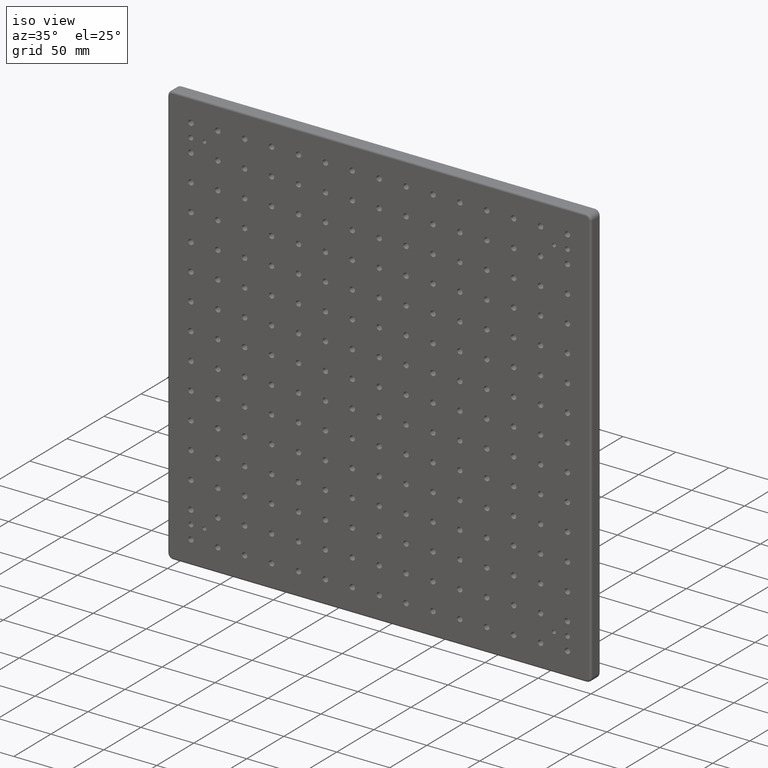
[diagram: clean part render]
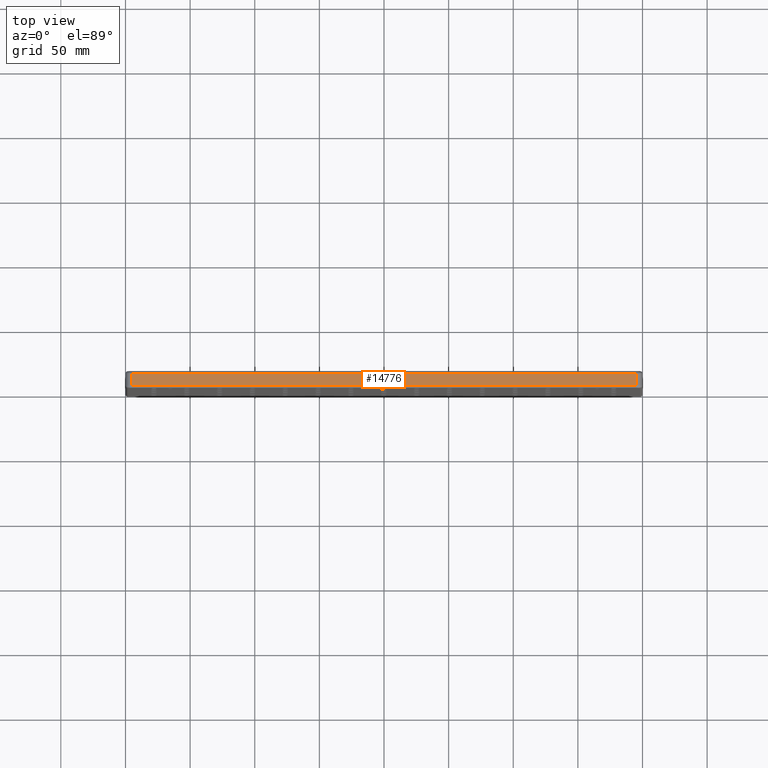
[diagram: tour spotlight — one face highlighted and labeled with its STEP entity id]
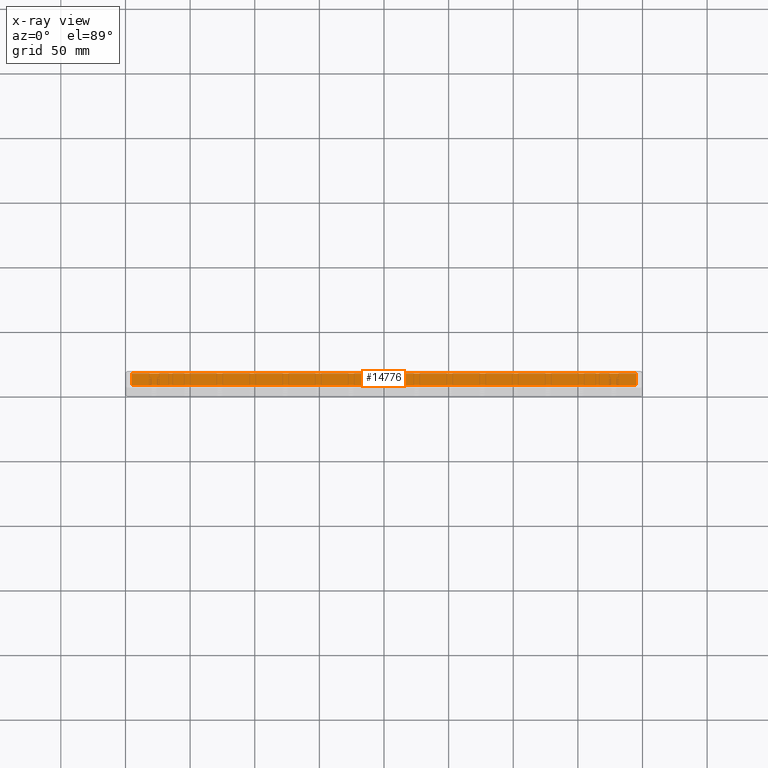
[diagram: x-ray of the same camera — body ghosted, this tour face saturated]
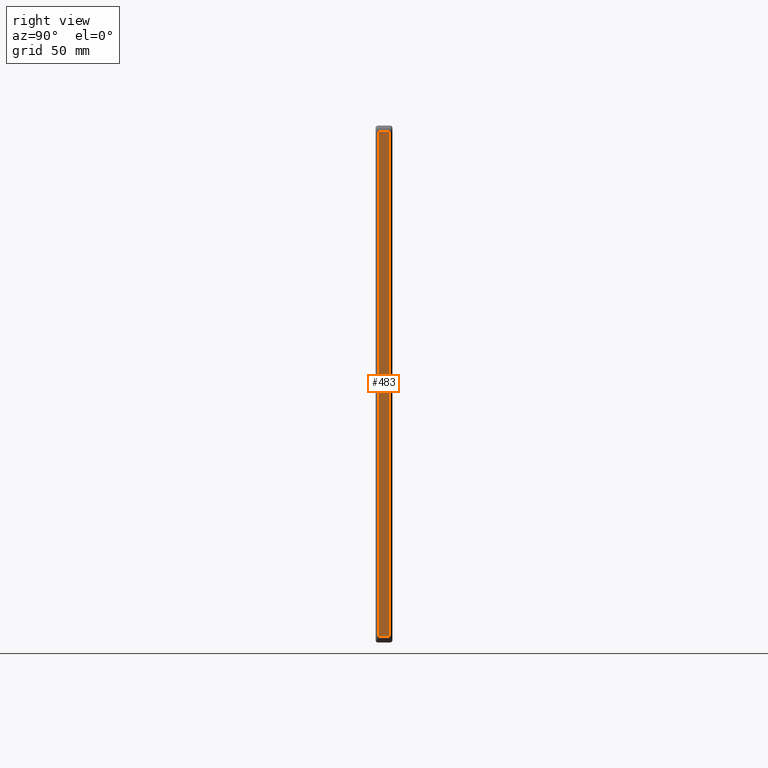
[diagram: tour spotlight — one face highlighted and labeled with its STEP entity id]
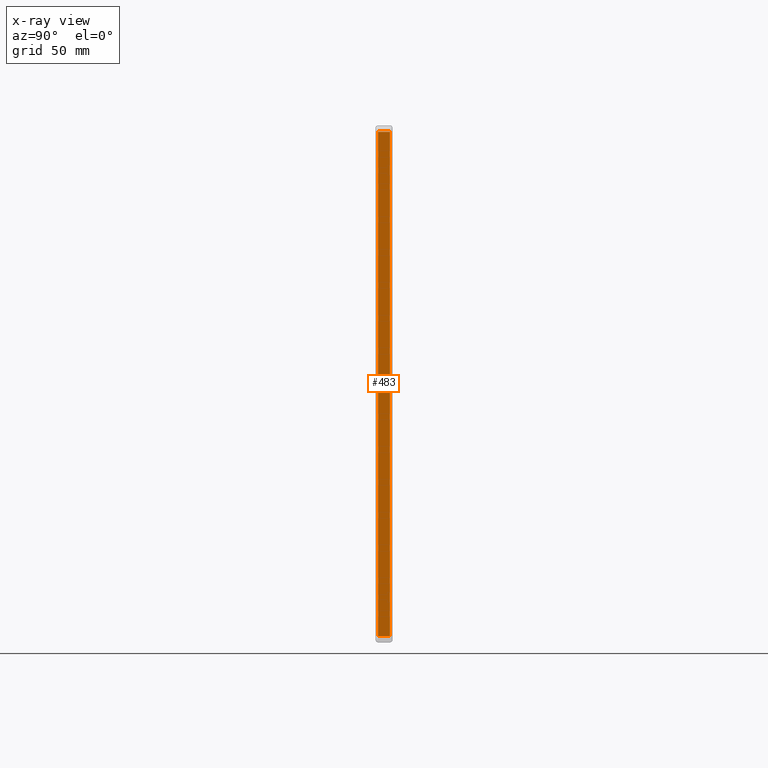
[diagram: x-ray of the same camera — body ghosted, this tour face saturated]
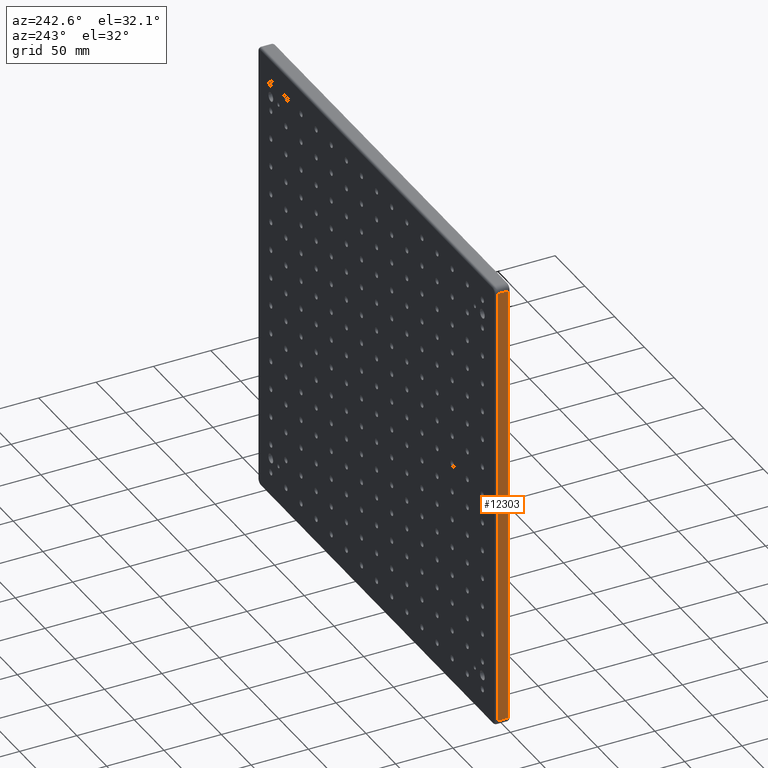
[diagram: tour spotlight — one face highlighted and labeled with its STEP entity id]
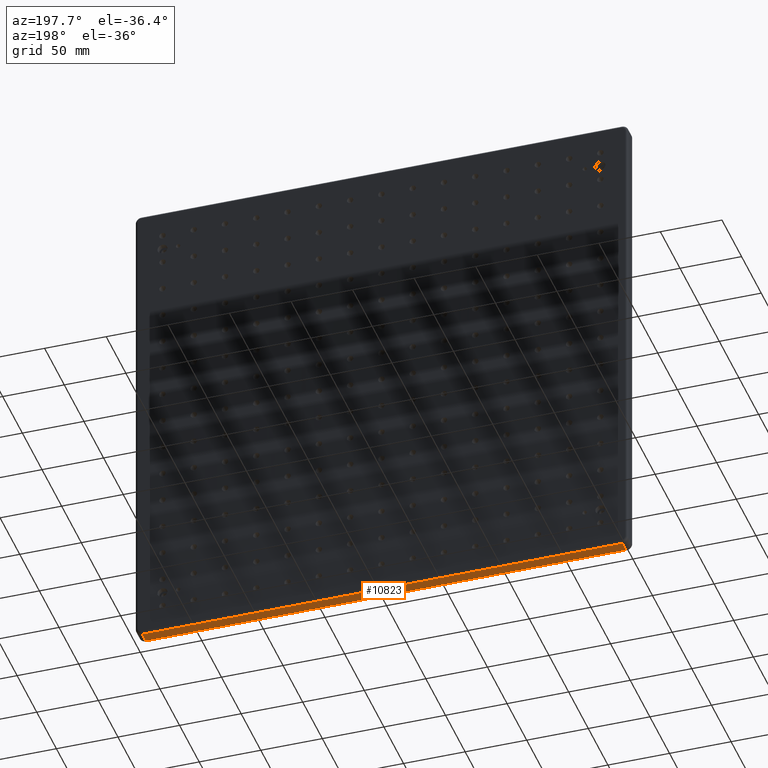
[diagram: tour spotlight — one face highlighted and labeled with its STEP entity id]
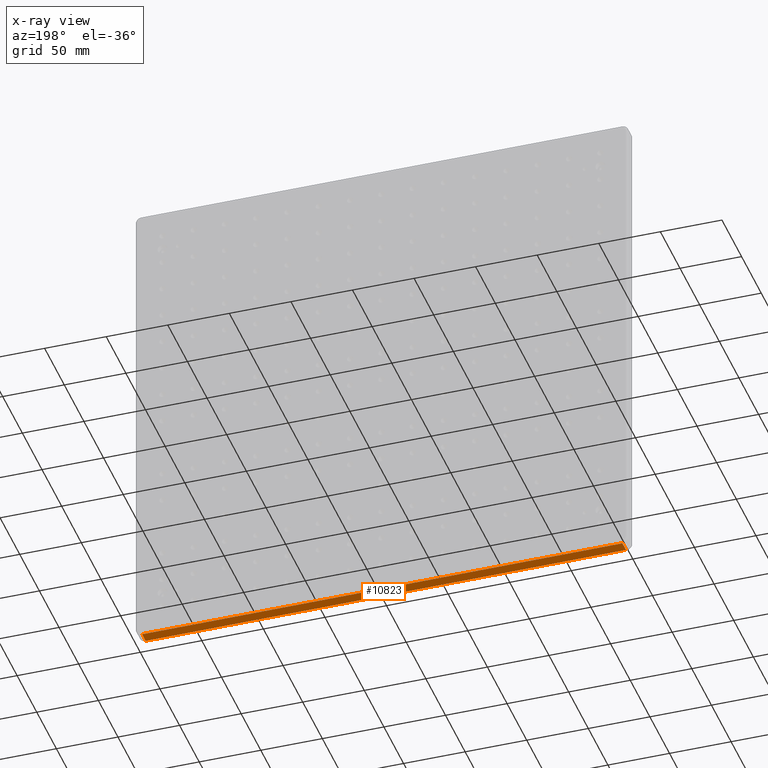
[diagram: x-ray of the same camera — body ghosted, this tour face saturated]
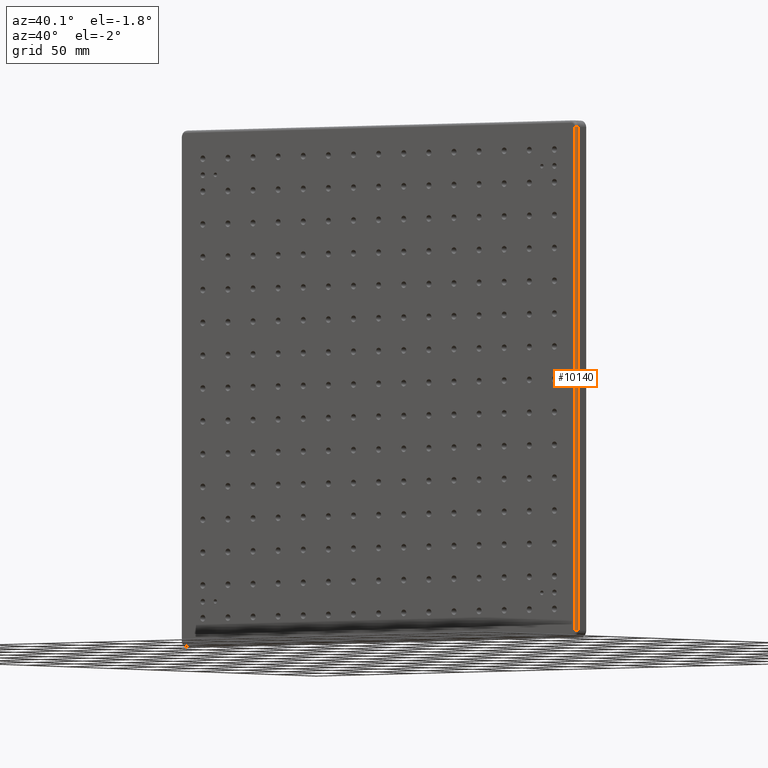
[diagram: tour spotlight — one face highlighted and labeled with its STEP entity id]
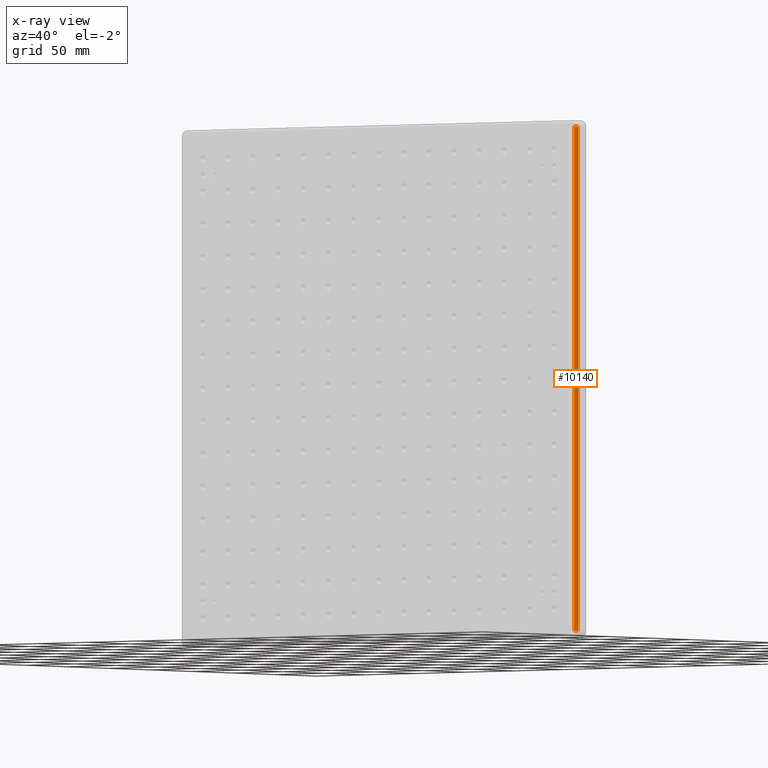
[diagram: x-ray of the same camera — body ghosted, this tour face saturated]
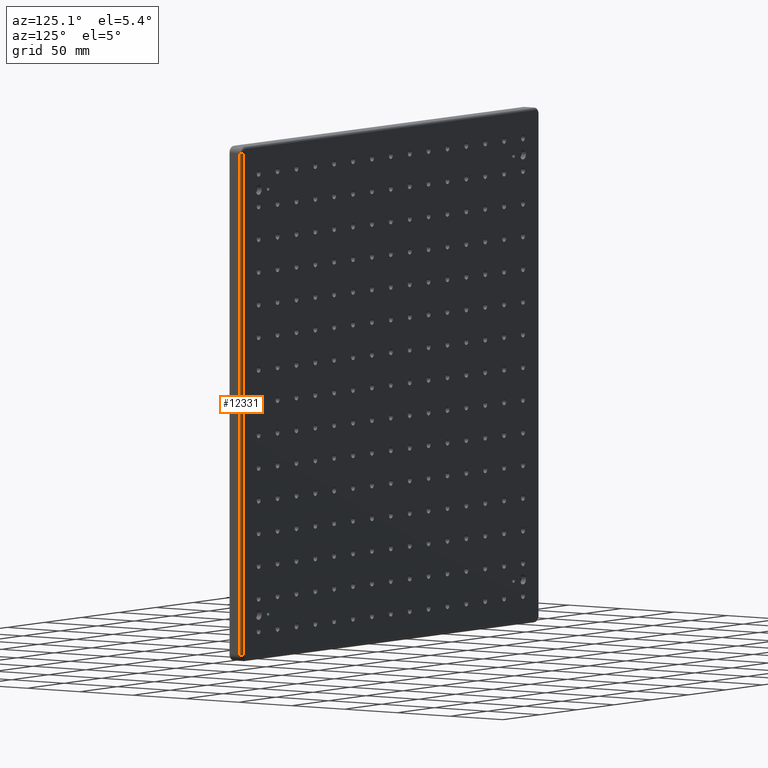
[diagram: tour spotlight — one face highlighted and labeled with its STEP entity id]
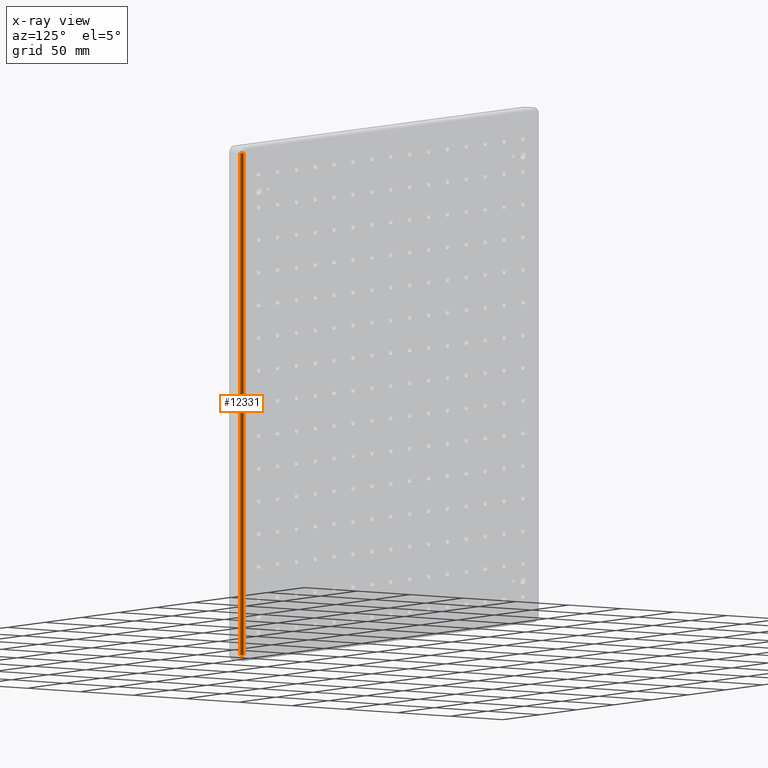
[diagram: x-ray of the same camera — body ghosted, this tour face saturated]
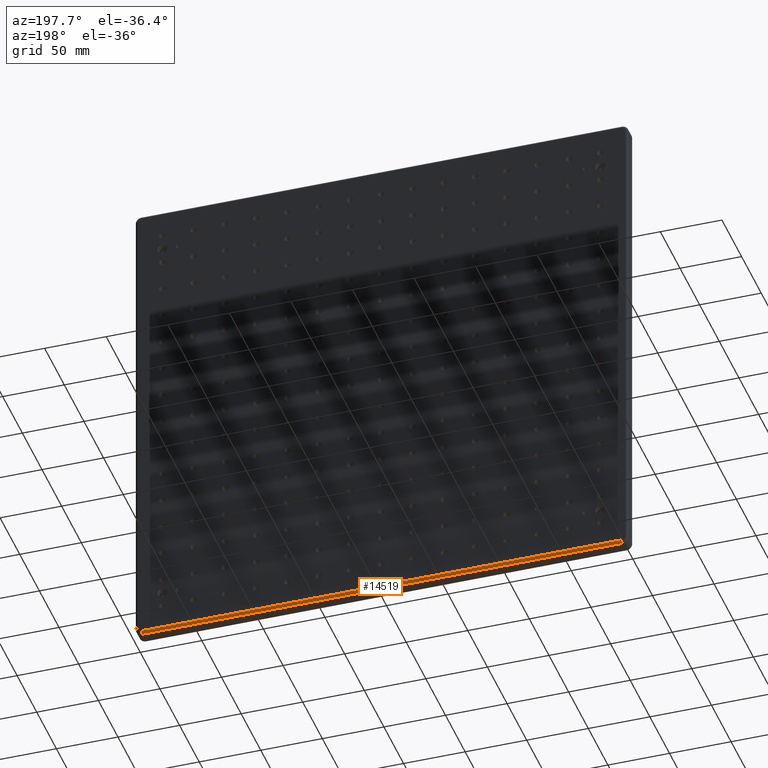
[diagram: tour spotlight — one face highlighted and labeled with its STEP entity id]
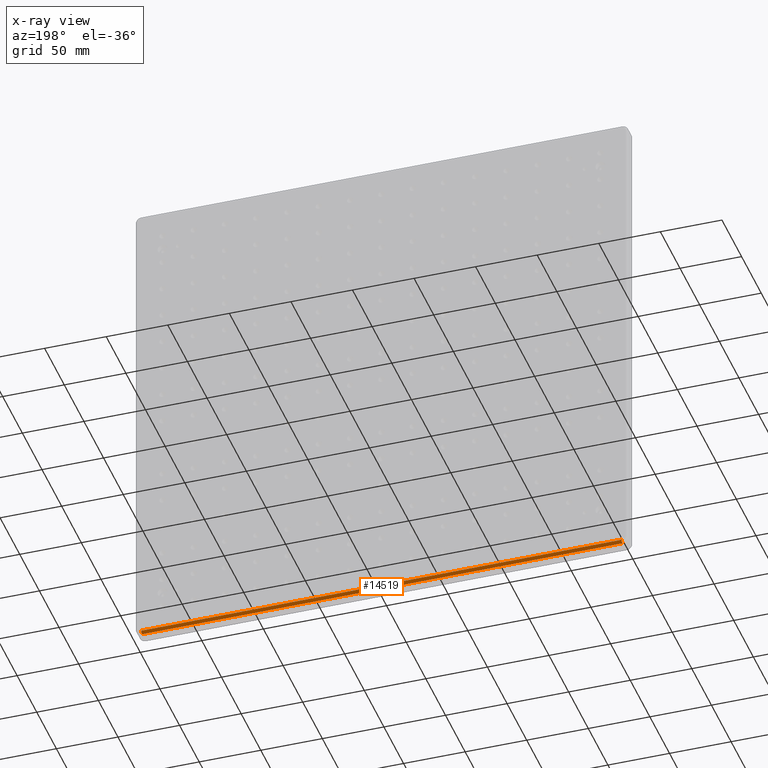
[diagram: x-ray of the same camera — body ghosted, this tour face saturated]
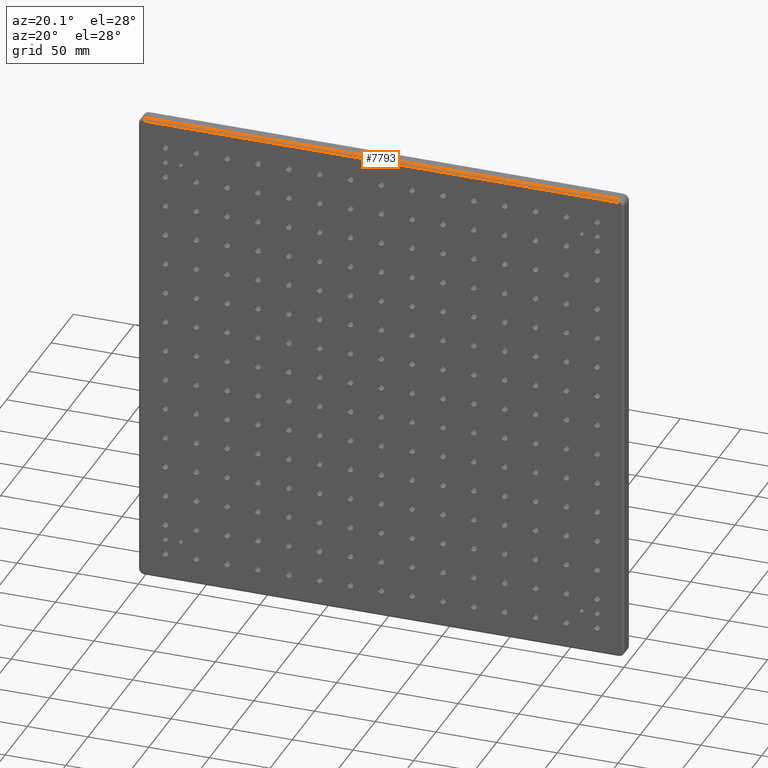
[diagram: tour spotlight — one face highlighted and labeled with its STEP entity id]
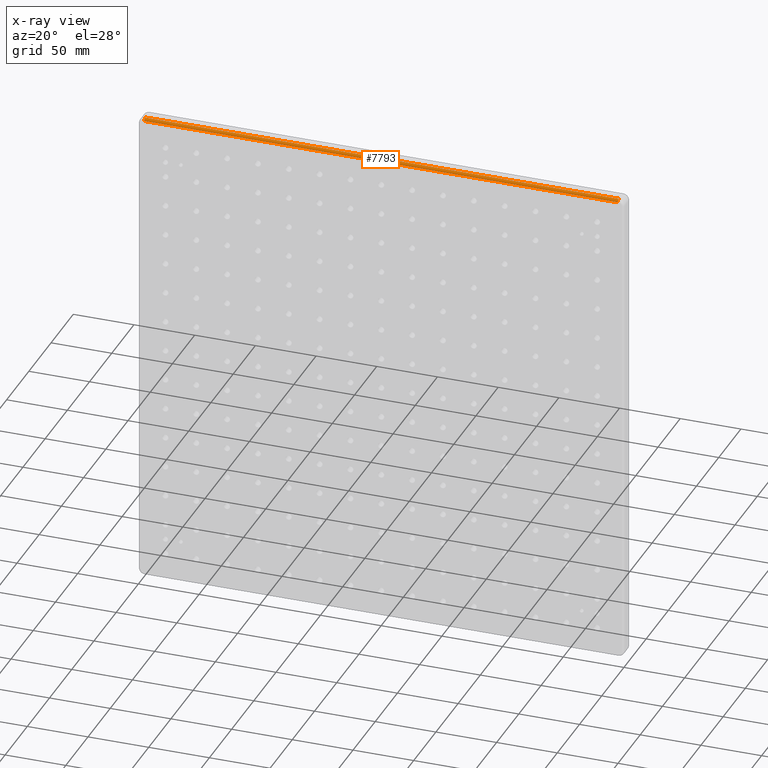
[diagram: x-ray of the same camera — body ghosted, this tour face saturated]
A machine part: a face-by-face anatomy tour. The part has 504 B-rep faces; the first image is the clean iso view, then the 8 largest visible faces are spotlighted one at a time (largest first), each with its STEP entity span.

Face 1 — top view, entity #14776. An x-ray twin of the same camera follows (body ghosted, this face saturated) — the face is partly hidden behind the body. In plain terms, the highlighted planar face has unit normal (-0, 0, -1).
Definition (entity closure, byte-faithful):
#77 = EDGE_CURVE ( 'NONE', #2467, #13270, #11244, .T. ) ;
#265 = CARTESIAN_POINT ( 'NONE',  ( 195.0000000000000000, 11.00000000000000000, 199.9999999999999400 ) ) ;
#1055 = CARTESIAN_POINT ( 'NONE',  ( 195.0000000000000000, 2.000000000000003600, 199.9999999999999400 ) ) ;
#1332 = LINE ( 'NONE', #3213, #5340 ) ;
#1809 = ORIENTED_EDGE ( 'NONE', *, *, #2120, .F. ) ;
#2120 = EDGE_CURVE ( 'NONE', #15778, #13270, #3586, .T. ) ;
#2467 = VERTEX_POINT ( 'NONE', #15358 ) ;
#2491 = EDGE_LOOP ( 'NONE', ( #16351, #6116, #1809, #17312 ) ) ;
#2707 = CARTESIAN_POINT ( 'NONE',  ( -194.9999999999999400, 2.000000000000000000, 200.0000000000000000 ) ) ;
#2862 = CARTESIAN_POINT ( 'NONE',  ( -194.9999999999999400, 13.00000000000000000, 200.0000000000000000 ) ) ;
#2873 = CARTESIAN_POINT ( 'NONE',  ( 195.0000000000000000, 13.00000000000000000, 199.9999999999999400 ) ) ;
#3213 = CARTESIAN_POINT ( 'NONE',  ( -194.9999999999999400, 13.00000000000000000, 200.0000000000000000 ) ) ;
#3325 = DIRECTION ( 'NONE',  ( -0.0000000000000000000, -1.000000000000000000, -0.0000000000000000000 ) ) ;
#3586 = LINE ( 'NONE', #2873, #5831 ) ;
#3712 = VECTOR ( 'NONE', #12349, 1000.000000000000000 ) ;
#4593 = DIRECTION ( 'NONE',  ( -1.000000000000000000, 0.0000000000000000000, 1.423362852083534100E-016 ) ) ;
#5030 = DIRECTION ( 'NONE',  ( -0.0000000000000000000, -1.000000000000000000, -0.0000000000000000000 ) ) ;
#5076 = VERTEX_POINT ( 'NONE', #8749 ) ;
#5340 = VECTOR ( 'NONE', #3325, 1000.000000000000000 ) ;
#5831 = VECTOR ( 'NONE', #5030, 1000.000000000000000 ) ;
#6116 = ORIENTED_EDGE ( 'NONE', *, *, #77, .T. ) ;
#8469 = EDGE_CURVE ( 'NONE', #5076, #2467, #1332, .T. ) ;
#8749 = CARTESIAN_POINT ( 'NONE',  ( -194.9999999999999400, 11.00000000000000000, 200.0000000000000000 ) ) ;
#9576 = DIRECTION ( 'NONE',  ( -1.000000000000000000, -0.0000000000000000000, 1.423362852083534100E-016 ) ) ;
#9723 = LINE ( 'NONE', #11112, #15205 ) ;
#9812 = AXIS2_PLACEMENT_3D ( 'NONE', #2862, #14488, #4593 ) ;
#9966 = EDGE_CURVE ( 'NONE', #15778, #5076, #9723, .T. ) ;
#11112 = CARTESIAN_POINT ( 'NONE',  ( -194.9999999999999400, 11.00000000000000000, 200.0000000000000000 ) ) ;
#11244 = LINE ( 'NONE', #2707, #3712 ) ;
#11346 = PLANE ( 'NONE',  #9812 ) ;
#12217 = FACE_OUTER_BOUND ( 'NONE', #2491, .T. ) ;
#12349 = DIRECTION ( 'NONE',  ( 1.000000000000000000, 0.0000000000000000000, -1.423362852083534100E-016 ) ) ;
#13270 = VERTEX_POINT ( 'NONE', #1055 ) ;
#14488 = DIRECTION ( 'NONE',  ( -1.423362852083534100E-016, 0.0000000000000000000, -1.000000000000000000 ) ) ;
#14776 = ADVANCED_FACE ( 'NONE', ( #12217 ), #11346, .F. ) ;
#15205 = VECTOR ( 'NONE', #9576, 1000.000000000000000 ) ;
#15358 = CARTESIAN_POINT ( 'NONE',  ( -194.9999999999999400, 2.000000000000003600, 200.0000000000000000 ) ) ;
#15778 = VERTEX_POINT ( 'NONE', #265 ) ;
#16351 = ORIENTED_EDGE ( 'NONE', *, *, #8469, .T. ) ;
#17312 = ORIENTED_EDGE ( 'NONE', *, *, #9966, .T. ) ;

Face 2 — right view, entity #483. An x-ray twin of the same camera follows (body ghosted, this face saturated) — the face is partly hidden behind the body. In plain terms, the highlighted planar face has unit normal (-1, 0, 0).
Definition (entity closure, byte-faithful):
#483 = ADVANCED_FACE ( 'NONE', ( #4829 ), #13500, .F. ) ;
#752 = EDGE_CURVE ( 'NONE', #9300, #10222, #5045, .T. ) ;
#1277 = DIRECTION ( 'NONE',  ( -0.0000000000000000000, -1.000000000000000000, -0.0000000000000000000 ) ) ;
#1515 = EDGE_CURVE ( 'NONE', #9300, #10618, #1880, .T. ) ;
#1880 = LINE ( 'NONE', #18321, #6997 ) ;
#2383 = EDGE_CURVE ( 'NONE', #10222, #5812, #13255, .T. ) ;
#3319 = VECTOR ( 'NONE', #1277, 1000.000000000000000 ) ;
#3486 = CARTESIAN_POINT ( 'NONE',  ( 200.0000000000000300, 11.00000000000000000, 194.9999999999999100 ) ) ;
#4829 = FACE_OUTER_BOUND ( 'NONE', #5179, .T. ) ;
#4919 = ORIENTED_EDGE ( 'NONE', *, *, #2383, .T. ) ;
#5005 = DIRECTION ( 'NONE',  ( -1.000000000000000000, 0.0000000000000000000, 7.116814260417670700E-017 ) ) ;
#5045 = LINE ( 'NONE', #9942, #8594 ) ;
#5179 = EDGE_LOOP ( 'NONE', ( #4919, #14579, #9483, #13265 ) ) ;
#5745 = DIRECTION ( 'NONE',  ( 7.116814260417670700E-017, -0.0000000000000000000, 1.000000000000000000 ) ) ;
#5806 = EDGE_CURVE ( 'NONE', #5812, #10618, #14253, .T. ) ;
#5812 = VERTEX_POINT ( 'NONE', #8737 ) ;
#6997 = VECTOR ( 'NONE', #8447, 1000.000000000000000 ) ;
#7267 = CARTESIAN_POINT ( 'NONE',  ( 200.0000000000000000, 2.000000000000000000, -195.0000000000000300 ) ) ;
#7513 = AXIS2_PLACEMENT_3D ( 'NONE', #13267, #5005, #14851 ) ;
#8003 = CARTESIAN_POINT ( 'NONE',  ( 200.0000000000000000, 2.000000000000003600, -195.0000000000000300 ) ) ;
#8447 = DIRECTION ( 'NONE',  ( -0.0000000000000000000, -1.000000000000000000, -0.0000000000000000000 ) ) ;
#8594 = VECTOR ( 'NONE', #5745, 1000.000000000000000 ) ;
#8737 = CARTESIAN_POINT ( 'NONE',  ( 200.0000000000000300, 2.000000000000001800, 194.9999999999999100 ) ) ;
#9300 = VERTEX_POINT ( 'NONE', #15048 ) ;
#9483 = ORIENTED_EDGE ( 'NONE', *, *, #1515, .F. ) ;
#9774 = CARTESIAN_POINT ( 'NONE',  ( 200.0000000000000300, 13.00000000000000000, 194.9999999999999100 ) ) ;
#9942 = CARTESIAN_POINT ( 'NONE',  ( 200.0000000000000300, 11.00000000000000000, 194.9999999999999100 ) ) ;
#10222 = VERTEX_POINT ( 'NONE', #3486 ) ;
#10618 = VERTEX_POINT ( 'NONE', #8003 ) ;
#13255 = LINE ( 'NONE', #9774, #3319 ) ;
#13265 = ORIENTED_EDGE ( 'NONE', *, *, #752, .T. ) ;
#13267 = CARTESIAN_POINT ( 'NONE',  ( 200.0000000000000000, 13.00000000000000000, -195.0000000000000300 ) ) ;
#13500 = PLANE ( 'NONE',  #7513 ) ;
#14253 = LINE ( 'NONE', #7267, #16004 ) ;
#14465 = DIRECTION ( 'NONE',  ( -7.116814260417670700E-017, 0.0000000000000000000, -1.000000000000000000 ) ) ;
#14579 = ORIENTED_EDGE ( 'NONE', *, *, #5806, .T. ) ;
#14851 = DIRECTION ( 'NONE',  ( 7.116814260417670700E-017, 0.0000000000000000000, 1.000000000000000000 ) ) ;
#15048 = CARTESIAN_POINT ( 'NONE',  ( 200.0000000000000000, 11.00000000000000000, -195.0000000000000300 ) ) ;
#16004 = VECTOR ( 'NONE', #14465, 1000.000000000000000 ) ;
#18321 = CARTESIAN_POINT ( 'NONE',  ( 200.0000000000000000, 13.00000000000000000, -195.0000000000000300 ) ) ;

Face 3 — auxiliary view, entity #12303. In plain terms, the highlighted planar face has unit normal (1, 0, -0).
Definition (entity closure, byte-faithful):
#18 = EDGE_CURVE ( 'NONE', #5198, #151, #2155, .T. ) ;
#151 = VERTEX_POINT ( 'NONE', #1080 ) ;
#291 = VECTOR ( 'NONE', #16952, 1000.000000000000000 ) ;
#1080 = CARTESIAN_POINT ( 'NONE',  ( -200.0000000000000000, 11.00000000000000000, -194.9999999999999700 ) ) ;
#1885 = VECTOR ( 'NONE', #11181, 1000.000000000000000 ) ;
#2016 = ORIENTED_EDGE ( 'NONE', *, *, #18, .T. ) ;
#2155 = LINE ( 'NONE', #9286, #6841 ) ;
#2167 = ORIENTED_EDGE ( 'NONE', *, *, #13129, .T. ) ;
#2872 = EDGE_LOOP ( 'NONE', ( #2167, #6864, #13669, #2016 ) ) ;
#3460 = LINE ( 'NONE', #7136, #5910 ) ;
#4738 = DIRECTION ( 'NONE',  ( -7.116814260417670700E-017, 0.0000000000000000000, -1.000000000000000000 ) ) ;
#5198 = VERTEX_POINT ( 'NONE', #7278 ) ;
#5703 = DIRECTION ( 'NONE',  ( -0.0000000000000000000, -1.000000000000000000, -0.0000000000000000000 ) ) ;
#5910 = VECTOR ( 'NONE', #5703, 1000.000000000000000 ) ;
#6051 = PLANE ( 'NONE',  #15539 ) ;
#6174 = CARTESIAN_POINT ( 'NONE',  ( -200.0000000000000000, 13.00000000000000000, -194.9999999999999700 ) ) ;
#6841 = VECTOR ( 'NONE', #13526, 1000.000000000000000 ) ;
#6864 = ORIENTED_EDGE ( 'NONE', *, *, #14140, .T. ) ;
#6885 = CARTESIAN_POINT ( 'NONE',  ( -200.0000000000000000, 2.000000000000000000, -194.9999999999999700 ) ) ;
#7136 = CARTESIAN_POINT ( 'NONE',  ( -199.9999999999999700, 13.00000000000000000, 194.9999999999999700 ) ) ;
#7278 = CARTESIAN_POINT ( 'NONE',  ( -199.9999999999999700, 11.00000000000000000, 194.9999999999999700 ) ) ;
#7518 = VERTEX_POINT ( 'NONE', #8041 ) ;
#8041 = CARTESIAN_POINT ( 'NONE',  ( -199.9999999999999700, 2.000000000000003600, 194.9999999999999700 ) ) ;
#8873 = DIRECTION ( 'NONE',  ( 1.000000000000000000, 0.0000000000000000000, -7.116814260417670700E-017 ) ) ;
#9286 = CARTESIAN_POINT ( 'NONE',  ( -200.0000000000000000, 11.00000000000000000, -194.9999999999999700 ) ) ;
#11181 = DIRECTION ( 'NONE',  ( -0.0000000000000000000, -1.000000000000000000, -0.0000000000000000000 ) ) ;
#11330 = VERTEX_POINT ( 'NONE', #12508 ) ;
#12303 = ADVANCED_FACE ( 'NONE', ( #13195 ), #6051, .F. ) ;
#12508 = CARTESIAN_POINT ( 'NONE',  ( -200.0000000000000000, 2.000000000000001800, -194.9999999999999700 ) ) ;
#12582 = CARTESIAN_POINT ( 'NONE',  ( -200.0000000000000000, 13.00000000000000000, -194.9999999999999700 ) ) ;
#12915 = EDGE_CURVE ( 'NONE', #5198, #7518, #3460, .T. ) ;
#13129 = EDGE_CURVE ( 'NONE', #151, #11330, #17781, .T. ) ;
#13195 = FACE_OUTER_BOUND ( 'NONE', #2872, .T. ) ;
#13526 = DIRECTION ( 'NONE',  ( -7.116814260417670700E-017, -0.0000000000000000000, -1.000000000000000000 ) ) ;
#13669 = ORIENTED_EDGE ( 'NONE', *, *, #12915, .F. ) ;
#14140 = EDGE_CURVE ( 'NONE', #11330, #7518, #15312, .T. ) ;
#15312 = LINE ( 'NONE', #6885, #291 ) ;
#15539 = AXIS2_PLACEMENT_3D ( 'NONE', #6174, #8873, #4738 ) ;
#16952 = DIRECTION ( 'NONE',  ( 7.116814260417670700E-017, -0.0000000000000000000, 1.000000000000000000 ) ) ;
#17781 = LINE ( 'NONE', #12582, #1885 ) ;

Face 4 — auxiliary view, entity #10823. An x-ray twin of the same camera follows (body ghosted, this face saturated) — the face is partly hidden behind the body. In plain terms, the highlighted planar face has unit normal (0, -0, 1).
Definition (entity closure, byte-faithful):
#783 = VERTEX_POINT ( 'NONE', #4679 ) ;
#855 = DIRECTION ( 'NONE',  ( -0.0000000000000000000, -1.000000000000000000, -0.0000000000000000000 ) ) ;
#1261 = CARTESIAN_POINT ( 'NONE',  ( 195.0000000000000000, 11.00000000000000000, -200.0000000000000600 ) ) ;
#1464 = LINE ( 'NONE', #2299, #16047 ) ;
#1465 = DIRECTION ( 'NONE',  ( 1.000000000000000000, 0.0000000000000000000, -1.423362852083534100E-016 ) ) ;
#2299 = CARTESIAN_POINT ( 'NONE',  ( -194.9999999999999700, 13.00000000000000000, -200.0000000000000000 ) ) ;
#2651 = VECTOR ( 'NONE', #11284, 1000.000000000000000 ) ;
#4106 = CARTESIAN_POINT ( 'NONE',  ( -194.9999999999999700, 2.000000000000000000, -200.0000000000000000 ) ) ;
#4444 = CARTESIAN_POINT ( 'NONE',  ( -194.9999999999999700, 13.00000000000000000, -200.0000000000000000 ) ) ;
#4679 = CARTESIAN_POINT ( 'NONE',  ( 194.9999999999999700, 11.00000000000000000, -200.0000000000000600 ) ) ;
#5002 = VERTEX_POINT ( 'NONE', #14944 ) ;
#5096 = LINE ( 'NONE', #4106, #2651 ) ;
#5392 = DIRECTION ( 'NONE',  ( -0.0000000000000000000, -1.000000000000000000, -0.0000000000000000000 ) ) ;
#5608 = VECTOR ( 'NONE', #5392, 1000.000000000000000 ) ;
#5759 = PLANE ( 'NONE',  #6674 ) ;
#6674 = AXIS2_PLACEMENT_3D ( 'NONE', #4444, #15610, #1465 ) ;
#8789 = EDGE_CURVE ( 'NONE', #17916, #5002, #5096, .T. ) ;
#9804 = CARTESIAN_POINT ( 'NONE',  ( -194.9999999999999700, 11.00000000000000000, -200.0000000000000000 ) ) ;
#10094 = ORIENTED_EDGE ( 'NONE', *, *, #13131, .T. ) ;
#10823 = ADVANCED_FACE ( 'NONE', ( #15175 ), #5759, .F. ) ;
#11265 = EDGE_CURVE ( 'NONE', #14719, #5002, #1464, .T. ) ;
#11284 = DIRECTION ( 'NONE',  ( -1.000000000000000000, 0.0000000000000000000, 1.423362852083534100E-016 ) ) ;
#11851 = VECTOR ( 'NONE', #17990, 1000.000000000000000 ) ;
#11994 = ORIENTED_EDGE ( 'NONE', *, *, #8789, .T. ) ;
#12123 = CARTESIAN_POINT ( 'NONE',  ( 194.9999999999999700, 13.00000000000000000, -200.0000000000000600 ) ) ;
#13131 = EDGE_CURVE ( 'NONE', #14719, #783, #15574, .T. ) ;
#13561 = CARTESIAN_POINT ( 'NONE',  ( 194.9999999999999700, 2.000000000000001800, -200.0000000000000600 ) ) ;
#14719 = VERTEX_POINT ( 'NONE', #9804 ) ;
#14944 = CARTESIAN_POINT ( 'NONE',  ( -194.9999999999999700, 2.000000000000003600, -200.0000000000000000 ) ) ;
#15175 = FACE_OUTER_BOUND ( 'NONE', #15326, .T. ) ;
#15326 = EDGE_LOOP ( 'NONE', ( #17213, #11994, #17549, #10094 ) ) ;
#15574 = LINE ( 'NONE', #1261, #11851 ) ;
#15610 = DIRECTION ( 'NONE',  ( 1.423362852083534100E-016, -0.0000000000000000000, 1.000000000000000000 ) ) ;
#16047 = VECTOR ( 'NONE', #855, 1000.000000000000000 ) ;
#16393 = LINE ( 'NONE', #12123, #5608 ) ;
#17073 = EDGE_CURVE ( 'NONE', #783, #17916, #16393, .T. ) ;
#17213 = ORIENTED_EDGE ( 'NONE', *, *, #17073, .T. ) ;
#17549 = ORIENTED_EDGE ( 'NONE', *, *, #11265, .F. ) ;
#17916 = VERTEX_POINT ( 'NONE', #13561 ) ;
#17990 = DIRECTION ( 'NONE',  ( 1.000000000000000000, -0.0000000000000000000, -1.423362852083534100E-016 ) ) ;

Face 5 — auxiliary view, entity #10140. An x-ray twin of the same camera follows (body ghosted, this face saturated) — the face is partly hidden behind the body. In plain terms, the highlighted cylindrical surface (edge-blend (fillet) strip) has radius 2 mm, axis along (-0, 0, -1).
Definition (entity closure, byte-faithful):
#3074 = FACE_OUTER_BOUND ( 'NONE', #10586, .T. ) ;
#4107 = CARTESIAN_POINT ( 'NONE',  ( 198.0000000000000000, 2.000000000000000000, -195.0000000000000300 ) ) ;
#4142 = AXIS2_PLACEMENT_3D ( 'NONE', #13717, #11021, #8266 ) ;
#4413 = AXIS2_PLACEMENT_3D ( 'NONE', #4485, #14365, #11611 ) ;
#4485 = CARTESIAN_POINT ( 'NONE',  ( 198.0000000000000000, 2.000000000000000000, -195.0000000000000300 ) ) ;
#4641 = ORIENTED_EDGE ( 'NONE', *, *, #5806, .F. ) ;
#5028 = DIRECTION ( 'NONE',  ( 7.116814260417670700E-017, -0.0000000000000000000, 1.000000000000000000 ) ) ;
#5210 = VERTEX_POINT ( 'NONE', #7156 ) ;
#5294 = VERTEX_POINT ( 'NONE', #17299 ) ;
#5387 = EDGE_CURVE ( 'NONE', #5294, #5210, #15561, .T. ) ;
#5806 = EDGE_CURVE ( 'NONE', #5812, #10618, #14253, .T. ) ;
#5812 = VERTEX_POINT ( 'NONE', #8737 ) ;
#7156 = CARTESIAN_POINT ( 'NONE',  ( 198.0000000000000300, 0.0000000000000000000, 194.9999999999999100 ) ) ;
#7267 = CARTESIAN_POINT ( 'NONE',  ( 200.0000000000000000, 2.000000000000000000, -195.0000000000000300 ) ) ;
#8003 = CARTESIAN_POINT ( 'NONE',  ( 200.0000000000000000, 2.000000000000003600, -195.0000000000000300 ) ) ;
#8266 = DIRECTION ( 'NONE',  ( 1.000000000000000000, 0.0000000000000000000, 0.0000000000000000000 ) ) ;
#8737 = CARTESIAN_POINT ( 'NONE',  ( 200.0000000000000300, 2.000000000000001800, 194.9999999999999100 ) ) ;
#9287 = ORIENTED_EDGE ( 'NONE', *, *, #13230, .T. ) ;
#10140 = ADVANCED_FACE ( 'NONE', ( #3074 ), #14349, .T. ) ;
#10586 = EDGE_LOOP ( 'NONE', ( #9287, #4641, #17866, #13061 ) ) ;
#10618 = VERTEX_POINT ( 'NONE', #8003 ) ;
#11021 = DIRECTION ( 'NONE',  ( -0.0000000000000000000, 0.0000000000000000000, 1.000000000000000000 ) ) ;
#11042 = DIRECTION ( 'NONE',  ( 1.000000000000000000, 0.0000000000000000000, 0.0000000000000000000 ) ) ;
#11170 = DIRECTION ( 'NONE',  ( 0.0000000000000000000, 0.0000000000000000000, 1.000000000000000000 ) ) ;
#11611 = DIRECTION ( 'NONE',  ( -1.000000000000000000, 0.0000000000000000000, 0.0000000000000000000 ) ) ;
#11839 = VECTOR ( 'NONE', #5028, 1000.000000000000000 ) ;
#12393 = AXIS2_PLACEMENT_3D ( 'NONE', #4107, #11170, #11042 ) ;
#12496 = CIRCLE ( 'NONE', #12393, 2.000000000000001800 ) ;
#13061 = ORIENTED_EDGE ( 'NONE', *, *, #5387, .F. ) ;
#13230 = EDGE_CURVE ( 'NONE', #5294, #10618, #12496, .T. ) ;
#13717 = CARTESIAN_POINT ( 'NONE',  ( 198.0000000000000300, 2.000000000000000000, 194.9999999999999100 ) ) ;
#14002 = CIRCLE ( 'NONE', #4142, 2.000000000000001800 ) ;
#14253 = LINE ( 'NONE', #7267, #16004 ) ;
#14349 = CYLINDRICAL_SURFACE ( 'NONE', #4413, 2.000000000000001800 ) ;
#14365 = DIRECTION ( 'NONE',  ( -7.116814260417670700E-017, 0.0000000000000000000, -1.000000000000000000 ) ) ;
#14465 = DIRECTION ( 'NONE',  ( -7.116814260417670700E-017, 0.0000000000000000000, -1.000000000000000000 ) ) ;
#15561 = LINE ( 'NONE', #17639, #11839 ) ;
#16004 = VECTOR ( 'NONE', #14465, 1000.000000000000000 ) ;
#17099 = EDGE_CURVE ( 'NONE', #5210, #5812, #14002, .T. ) ;
#17299 = CARTESIAN_POINT ( 'NONE',  ( 198.0000000000000000, 0.0000000000000000000, -195.0000000000000300 ) ) ;
#17639 = CARTESIAN_POINT ( 'NONE',  ( 198.0000000000000000, 0.0000000000000000000, -195.0000000000000300 ) ) ;
#17866 = ORIENTED_EDGE ( 'NONE', *, *, #17099, .F. ) ;

Face 6 — auxiliary view, entity #12331. An x-ray twin of the same camera follows (body ghosted, this face saturated) — the face is partly hidden behind the body. In plain terms, the highlighted cylindrical surface (edge-blend (fillet) strip) has radius 2 mm, axis along (0, -0, 1).
Definition (entity closure, byte-faithful):
#220 = DIRECTION ( 'NONE',  ( -7.116814260417670700E-017, 0.0000000000000000000, -1.000000000000000000 ) ) ;
#559 = ORIENTED_EDGE ( 'NONE', *, *, #12693, .F. ) ;
#593 = AXIS2_PLACEMENT_3D ( 'NONE', #7549, #1878, #13200 ) ;
#752 = EDGE_CURVE ( 'NONE', #9300, #10222, #5045, .T. ) ;
#1602 = DIRECTION ( 'NONE',  ( 1.000000000000000000, 0.0000000000000000000, 0.0000000000000000000 ) ) ;
#1609 = EDGE_CURVE ( 'NONE', #10222, #4456, #5440, .T. ) ;
#1878 = DIRECTION ( 'NONE',  ( 0.0000000000000000000, 0.0000000000000000000, 1.000000000000000000 ) ) ;
#2014 = CARTESIAN_POINT ( 'NONE',  ( 198.0000000000000000, 13.00000000000000000, -195.0000000000000300 ) ) ;
#3107 = AXIS2_PLACEMENT_3D ( 'NONE', #15855, #11752, #1602 ) ;
#3486 = CARTESIAN_POINT ( 'NONE',  ( 200.0000000000000300, 11.00000000000000000, 194.9999999999999100 ) ) ;
#4287 = ORIENTED_EDGE ( 'NONE', *, *, #1609, .F. ) ;
#4393 = CIRCLE ( 'NONE', #593, 2.000000000000001800 ) ;
#4456 = VERTEX_POINT ( 'NONE', #7258 ) ;
#4685 = ORIENTED_EDGE ( 'NONE', *, *, #752, .F. ) ;
#5045 = LINE ( 'NONE', #9942, #8594 ) ;
#5440 = CIRCLE ( 'NONE', #3107, 2.000000000000001800 ) ;
#5683 = FACE_OUTER_BOUND ( 'NONE', #14371, .T. ) ;
#5745 = DIRECTION ( 'NONE',  ( 7.116814260417670700E-017, -0.0000000000000000000, 1.000000000000000000 ) ) ;
#7258 = CARTESIAN_POINT ( 'NONE',  ( 198.0000000000000300, 13.00000000000000000, 194.9999999999999100 ) ) ;
#7549 = CARTESIAN_POINT ( 'NONE',  ( 198.0000000000000000, 11.00000000000000000, -195.0000000000000300 ) ) ;
#8594 = VECTOR ( 'NONE', #5745, 1000.000000000000000 ) ;
#8944 = CARTESIAN_POINT ( 'NONE',  ( 198.0000000000000000, 11.00000000000000000, -195.0000000000000300 ) ) ;
#9300 = VERTEX_POINT ( 'NONE', #15048 ) ;
#9539 = AXIS2_PLACEMENT_3D ( 'NONE', #8944, #17495, #13550 ) ;
#9942 = CARTESIAN_POINT ( 'NONE',  ( 200.0000000000000300, 11.00000000000000000, 194.9999999999999100 ) ) ;
#10222 = VERTEX_POINT ( 'NONE', #3486 ) ;
#10277 = EDGE_CURVE ( 'NONE', #9300, #12504, #4393, .T. ) ;
#10303 = ORIENTED_EDGE ( 'NONE', *, *, #10277, .T. ) ;
#11426 = LINE ( 'NONE', #14329, #14920 ) ;
#11752 = DIRECTION ( 'NONE',  ( 0.0000000000000000000, 0.0000000000000000000, 1.000000000000000000 ) ) ;
#12331 = ADVANCED_FACE ( 'NONE', ( #5683 ), #14496, .T. ) ;
#12504 = VERTEX_POINT ( 'NONE', #2014 ) ;
#12693 = EDGE_CURVE ( 'NONE', #4456, #12504, #11426, .T. ) ;
#13200 = DIRECTION ( 'NONE',  ( 1.000000000000000000, 0.0000000000000000000, 0.0000000000000000000 ) ) ;
#13550 = DIRECTION ( 'NONE',  ( 1.000000000000000000, 0.0000000000000000000, 0.0000000000000000000 ) ) ;
#14329 = CARTESIAN_POINT ( 'NONE',  ( 198.0000000000000000, 13.00000000000000000, -195.0000000000000300 ) ) ;
#14371 = EDGE_LOOP ( 'NONE', ( #10303, #559, #4287, #4685 ) ) ;
#14496 = CYLINDRICAL_SURFACE ( 'NONE', #9539, 2.000000000000001800 ) ;
#14920 = VECTOR ( 'NONE', #220, 1000.000000000000000 ) ;
#15048 = CARTESIAN_POINT ( 'NONE',  ( 200.0000000000000000, 11.00000000000000000, -195.0000000000000300 ) ) ;
#15855 = CARTESIAN_POINT ( 'NONE',  ( 198.0000000000000300, 11.00000000000000000, 194.9999999999999100 ) ) ;
#17495 = DIRECTION ( 'NONE',  ( 7.116814260417670700E-017, -0.0000000000000000000, 1.000000000000000000 ) ) ;

Face 7 — auxiliary view, entity #14519. An x-ray twin of the same camera follows (body ghosted, this face saturated) — the face is partly hidden behind the body. In plain terms, the highlighted cylindrical surface (edge-blend (fillet) strip) has radius 2 mm, axis along (1, 0, -0).
Definition (entity closure, byte-faithful):
#127 = LINE ( 'NONE', #11031, #14065 ) ;
#669 = CARTESIAN_POINT ( 'NONE',  ( -195.0000000000000000, 11.00000000000000000, -198.0000000000000000 ) ) ;
#783 = VERTEX_POINT ( 'NONE', #4679 ) ;
#1015 = VERTEX_POINT ( 'NONE', #4931 ) ;
#1261 = CARTESIAN_POINT ( 'NONE',  ( 195.0000000000000000, 11.00000000000000000, -200.0000000000000600 ) ) ;
#2244 = CIRCLE ( 'NONE', #10635, 2.000000000000001800 ) ;
#3112 = CARTESIAN_POINT ( 'NONE',  ( 194.9999999999999700, 11.00000000000000000, -198.0000000000000600 ) ) ;
#3162 = CIRCLE ( 'NONE', #14072, 2.000000000000001800 ) ;
#4425 = ORIENTED_EDGE ( 'NONE', *, *, #7109, .T. ) ;
#4679 = CARTESIAN_POINT ( 'NONE',  ( 194.9999999999999700, 11.00000000000000000, -200.0000000000000600 ) ) ;
#4726 = DIRECTION ( 'NONE',  ( 0.0000000000000000000, 0.0000000000000000000, 1.000000000000000000 ) ) ;
#4931 = CARTESIAN_POINT ( 'NONE',  ( 194.9999999999999700, 13.00000000000000000, -198.0000000000000600 ) ) ;
#5562 = EDGE_LOOP ( 'NONE', ( #4425, #6553, #5602, #12515 ) ) ;
#5602 = ORIENTED_EDGE ( 'NONE', *, *, #6972, .F. ) ;
#6553 = ORIENTED_EDGE ( 'NONE', *, *, #13131, .F. ) ;
#6972 = EDGE_CURVE ( 'NONE', #7155, #14719, #2244, .T. ) ;
#7109 = EDGE_CURVE ( 'NONE', #1015, #783, #3162, .T. ) ;
#7155 = VERTEX_POINT ( 'NONE', #9176 ) ;
#7239 = AXIS2_PLACEMENT_3D ( 'NONE', #669, #13300, #14818 ) ;
#9047 = DIRECTION ( 'NONE',  ( 0.0000000000000000000, 0.0000000000000000000, 1.000000000000000000 ) ) ;
#9176 = CARTESIAN_POINT ( 'NONE',  ( -194.9999999999999700, 13.00000000000000000, -198.0000000000000000 ) ) ;
#9804 = CARTESIAN_POINT ( 'NONE',  ( -194.9999999999999700, 11.00000000000000000, -200.0000000000000000 ) ) ;
#10635 = AXIS2_PLACEMENT_3D ( 'NONE', #17234, #13001, #4726 ) ;
#11031 = CARTESIAN_POINT ( 'NONE',  ( -194.9999999999999700, 13.00000000000000000, -198.0000000000000000 ) ) ;
#11379 = EDGE_CURVE ( 'NONE', #1015, #7155, #127, .T. ) ;
#11851 = VECTOR ( 'NONE', #17990, 1000.000000000000000 ) ;
#12515 = ORIENTED_EDGE ( 'NONE', *, *, #11379, .F. ) ;
#13001 = DIRECTION ( 'NONE',  ( -1.000000000000000000, 0.0000000000000000000, 0.0000000000000000000 ) ) ;
#13119 = CYLINDRICAL_SURFACE ( 'NONE', #7239, 2.000000000000001800 ) ;
#13131 = EDGE_CURVE ( 'NONE', #14719, #783, #15574, .T. ) ;
#13186 = DIRECTION ( 'NONE',  ( -1.000000000000000000, 0.0000000000000000000, 0.0000000000000000000 ) ) ;
#13300 = DIRECTION ( 'NONE',  ( 1.000000000000000000, 0.0000000000000000000, -1.423362852083534100E-016 ) ) ;
#14065 = VECTOR ( 'NONE', #15380, 1000.000000000000000 ) ;
#14072 = AXIS2_PLACEMENT_3D ( 'NONE', #3112, #13186, #9047 ) ;
#14226 = FACE_OUTER_BOUND ( 'NONE', #5562, .T. ) ;
#14519 = ADVANCED_FACE ( 'NONE', ( #14226 ), #13119, .T. ) ;
#14719 = VERTEX_POINT ( 'NONE', #9804 ) ;
#14818 = DIRECTION ( 'NONE',  ( 0.0000000000000000000, 0.0000000000000000000, -1.000000000000000000 ) ) ;
#15380 = DIRECTION ( 'NONE',  ( -1.000000000000000000, 0.0000000000000000000, 1.423362852083534100E-016 ) ) ;
#15574 = LINE ( 'NONE', #1261, #11851 ) ;
#17234 = CARTESIAN_POINT ( 'NONE',  ( -194.9999999999999700, 11.00000000000000000, -198.0000000000000000 ) ) ;
#17990 = DIRECTION ( 'NONE',  ( 1.000000000000000000, -0.0000000000000000000, -1.423362852083534100E-016 ) ) ;

Face 8 — auxiliary view, entity #7793. An x-ray twin of the same camera follows (body ghosted, this face saturated) — the face is partly hidden behind the body. In plain terms, the highlighted cylindrical surface (edge-blend (fillet) strip) has radius 2 mm, axis along (1, 0, -0).
Definition (entity closure, byte-faithful):
#17 = CARTESIAN_POINT ( 'NONE',  ( 195.0000000000000000, 2.000000000000000000, 197.9999999999999400 ) ) ;
#77 = EDGE_CURVE ( 'NONE', #2467, #13270, #11244, .T. ) ;
#276 = CIRCLE ( 'NONE', #15942, 2.000000000000001800 ) ;
#874 = ORIENTED_EDGE ( 'NONE', *, *, #5358, .F. ) ;
#1055 = CARTESIAN_POINT ( 'NONE',  ( 195.0000000000000000, 2.000000000000003600, 199.9999999999999400 ) ) ;
#1249 = CARTESIAN_POINT ( 'NONE',  ( -194.9999999999999400, 2.000000000000000000, 198.0000000000000000 ) ) ;
#2467 = VERTEX_POINT ( 'NONE', #15358 ) ;
#2699 = DIRECTION ( 'NONE',  ( -1.000000000000000000, 0.0000000000000000000, 0.0000000000000000000 ) ) ;
#2707 = CARTESIAN_POINT ( 'NONE',  ( -194.9999999999999400, 2.000000000000000000, 200.0000000000000000 ) ) ;
#2755 = DIRECTION ( 'NONE',  ( 0.0000000000000000000, 0.0000000000000000000, -1.000000000000000000 ) ) ;
#3413 = DIRECTION ( 'NONE',  ( -1.000000000000000000, -0.0000000000000000000, 1.423362852083534100E-016 ) ) ;
#3712 = VECTOR ( 'NONE', #12349, 1000.000000000000000 ) ;
#3777 = ORIENTED_EDGE ( 'NONE', *, *, #8715, .F. ) ;
#3782 = AXIS2_PLACEMENT_3D ( 'NONE', #18291, #14115, #2755 ) ;
#4070 = DIRECTION ( 'NONE',  ( 0.0000000000000000000, 0.0000000000000000000, 1.000000000000000000 ) ) ;
#4837 = CARTESIAN_POINT ( 'NONE',  ( -194.9999999999999400, 0.0000000000000000000, 198.0000000000000000 ) ) ;
#5358 = EDGE_CURVE ( 'NONE', #6833, #8630, #10729, .T. ) ;
#6833 = VERTEX_POINT ( 'NONE', #16522 ) ;
#7338 = FACE_OUTER_BOUND ( 'NONE', #16331, .T. ) ;
#7793 = ADVANCED_FACE ( 'NONE', ( #7338 ), #12382, .T. ) ;
#8452 = AXIS2_PLACEMENT_3D ( 'NONE', #1249, #14112, #14172 ) ;
#8630 = VERTEX_POINT ( 'NONE', #17913 ) ;
#8715 = EDGE_CURVE ( 'NONE', #8630, #2467, #10203, .T. ) ;
#10203 = CIRCLE ( 'NONE', #8452, 2.000000000000001800 ) ;
#10729 = LINE ( 'NONE', #4837, #15794 ) ;
#11244 = LINE ( 'NONE', #2707, #3712 ) ;
#11780 = ORIENTED_EDGE ( 'NONE', *, *, #16727, .T. ) ;
#12349 = DIRECTION ( 'NONE',  ( 1.000000000000000000, 0.0000000000000000000, -1.423362852083534100E-016 ) ) ;
#12382 = CYLINDRICAL_SURFACE ( 'NONE', #3782, 2.000000000000001800 ) ;
#13270 = VERTEX_POINT ( 'NONE', #1055 ) ;
#13758 = ORIENTED_EDGE ( 'NONE', *, *, #77, .F. ) ;
#14112 = DIRECTION ( 'NONE',  ( -1.000000000000000000, 0.0000000000000000000, 0.0000000000000000000 ) ) ;
#14115 = DIRECTION ( 'NONE',  ( 1.000000000000000000, 0.0000000000000000000, -1.423362852083534100E-016 ) ) ;
#14172 = DIRECTION ( 'NONE',  ( 0.0000000000000000000, 0.0000000000000000000, 1.000000000000000000 ) ) ;
#15358 = CARTESIAN_POINT ( 'NONE',  ( -194.9999999999999400, 2.000000000000003600, 200.0000000000000000 ) ) ;
#15794 = VECTOR ( 'NONE', #3413, 1000.000000000000000 ) ;
#15942 = AXIS2_PLACEMENT_3D ( 'NONE', #17, #2699, #4070 ) ;
#16331 = EDGE_LOOP ( 'NONE', ( #11780, #13758, #3777, #874 ) ) ;
#16522 = CARTESIAN_POINT ( 'NONE',  ( 195.0000000000000000, 0.0000000000000000000, 197.9999999999999400 ) ) ;
#16727 = EDGE_CURVE ( 'NONE', #6833, #13270, #276, .T. ) ;
#17913 = CARTESIAN_POINT ( 'NONE',  ( -194.9999999999999400, 0.0000000000000000000, 198.0000000000000000 ) ) ;
#18291 = CARTESIAN_POINT ( 'NONE',  ( -194.9999999999999400, 2.000000000000000000, 198.0000000000000000 ) ) ;